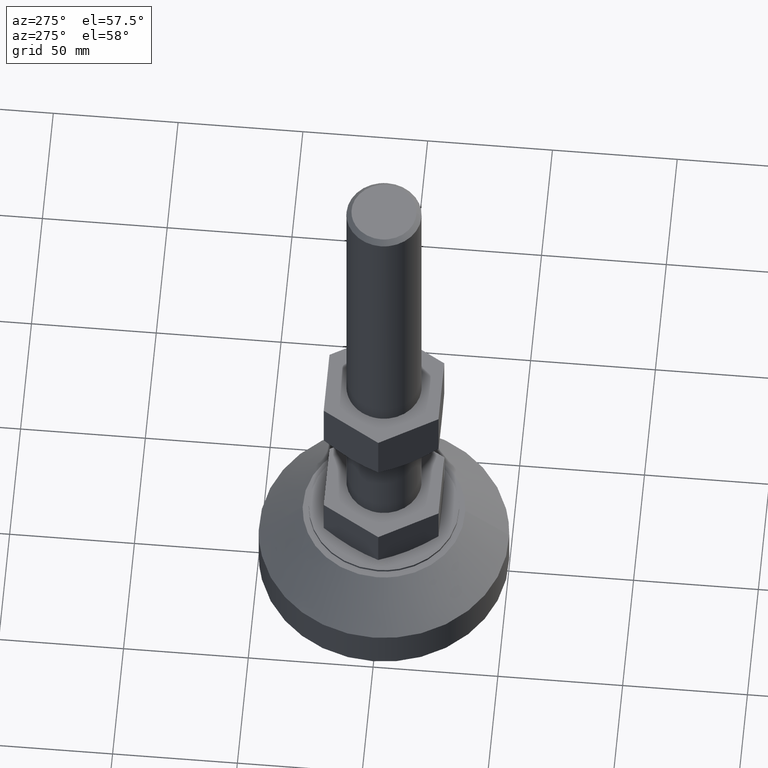
[diagram: clean part render]
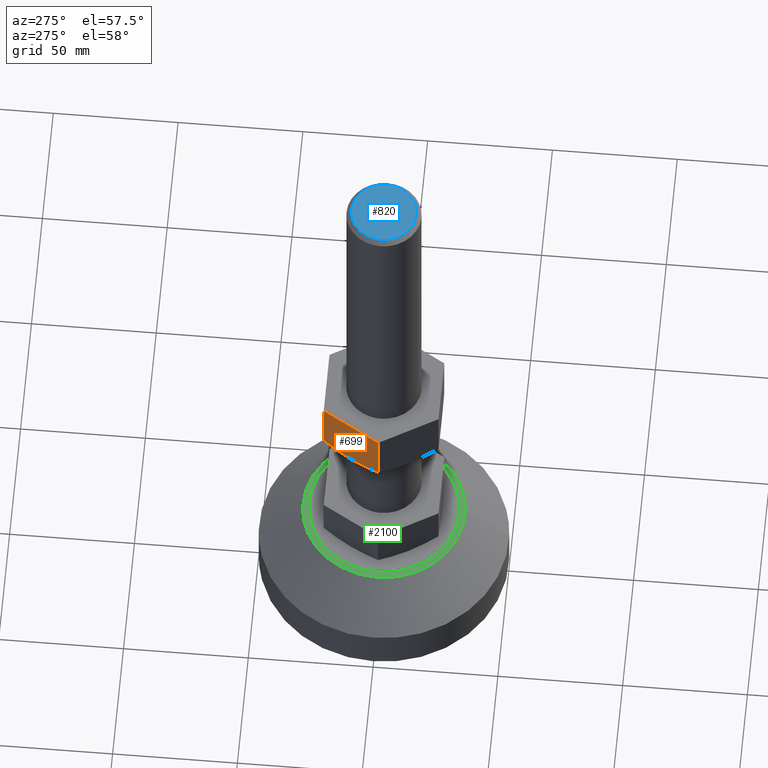
[diagram: same view with three faces highlighted in distinct colors, each labeled with its STEP entity id]
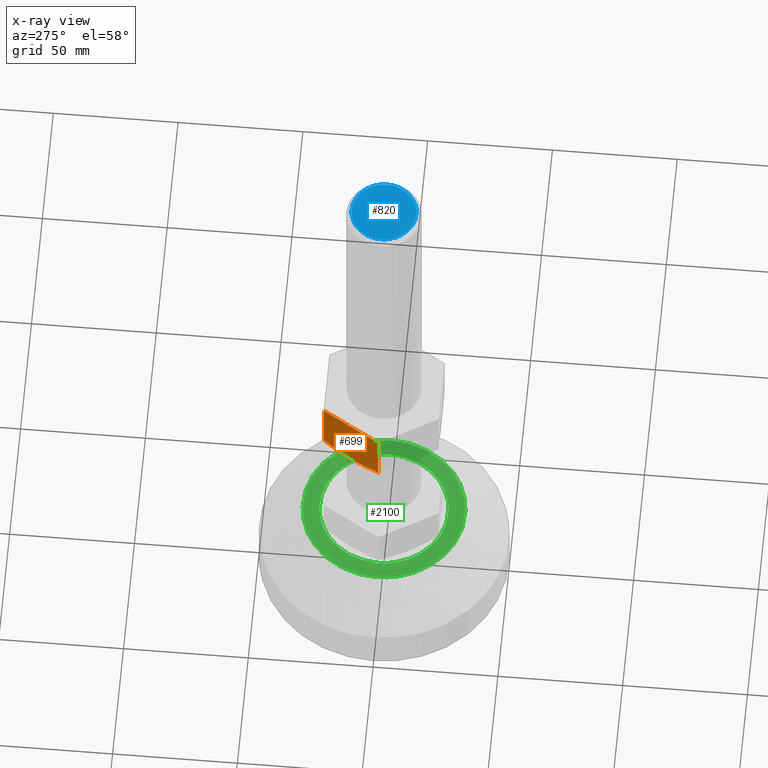
[diagram: x-ray of the same camera — body ghosted, the three highlighted faces saturated]
A machine part, auxiliary view with three faces highlighted in distinct colors.
The next image is the same camera in x-ray (body ghosted, the three faces saturated) — at least one of them is partly hidden behind the body in this view.
Their STEP definitions:

[orange] entity #699 — the highlighted face is a freeform B-spline surface patch.
#209=CARTESIAN_POINT('',(-19.918584287581599,11.500000000311660,101.500000000000000));
#210=VERTEX_POINT('',#209);
#508=CARTESIAN_POINT('',(-13.279056191431479,22.999999999879549,103.554277141584390));
#509=VERTEX_POINT('',#508);
#510=CARTESIAN_POINT('',(-13.279056191431479,22.999999999879549,103.554277141584390));
#511=CARTESIAN_POINT('',(-14.363165532334570,21.122267540473828,102.928366321783400));
#512=CARTESIAN_POINT('',(-15.455178589711050,19.230845442569169,102.412502653966000));
#513=CARTESIAN_POINT('',(-17.110278447046909,16.364128398063450,101.876523781289190));
#514=CARTESIAN_POINT('',(-17.664831937696739,15.403613576743270,101.737595308044310));
#515=CARTESIAN_POINT('',(-18.780397070937990,13.471398086817080,101.549658240475490));
#516=CARTESIAN_POINT('',(-19.341414293999300,12.499687752553699,101.500727345651400));
#517=CARTESIAN_POINT('',(-19.910123991145191,11.514653662339910,101.500002694858200));
#518=CARTESIAN_POINT('',(-19.914354042319850,11.507326998786770,101.500000000535000));
#519=CARTESIAN_POINT('',(-19.918584287121352,11.499999999862119,101.500000002169000));
#520=B_SPLINE_CURVE_WITH_KNOTS('',3,(#510,#511,#512,#513,#514,#515,#516,#517,#518,#519),.UNSPECIFIED.,.F.,.U.,(4,2,2,2,4),(0.0,0.250000000000001,0.375000000000001,0.500000000000001,0.500936671536728),.UNSPECIFIED.);
#521=EDGE_CURVE('',#509,#210,#520,.T.);
#556=CARTESIAN_POINT('',(-26.558112382653398,0.0,103.554277141584390));
#557=VERTEX_POINT('',#556);
#571=CARTESIAN_POINT('',(-19.918584287581599,11.500000000311660,101.500000000000000));
#572=CARTESIAN_POINT('',(-20.055486920867260,11.262877682524220,101.500000055054100));
#573=CARTESIAN_POINT('',(-20.192592349732479,11.025404113736119,101.502823723634900));
#574=CARTESIAN_POINT('',(-20.471454488147138,10.542400721694630,101.514333341154600));
#575=CARTESIAN_POINT('',(-20.612996516799662,10.297242736662120,101.523193135205600));
#576=CARTESIAN_POINT('',(-21.036572466519821,9.563587670882544,101.558638544490610));
#577=CARTESIAN_POINT('',(-21.317975327666371,9.076183617981465,101.594114884300690));
#578=CARTESIAN_POINT('',(-22.159367975885051,7.618848802151789,101.734544082940400));
#579=CARTESIAN_POINT('',(-22.716535244242291,6.653806785042677,101.873576611434400));
#580=CARTESIAN_POINT('',(-24.378117461084141,3.775861964519681,102.410445339017500));
#581=CARTESIAN_POINT('',(-25.472651472915199,1.880073445416084,102.927585993149900));
#582=CARTESIAN_POINT('',(-26.558112382702820,3.398886E-011,103.554277141612900));
#583=B_SPLINE_CURVE_WITH_KNOTS('',3,(#571,#572,#573,#574,#575,#576,#577,#578,#579,#580,#581,#582),.UNSPECIFIED.,.F.,.U.,(4,2,2,2,2,4),(0.500936671558572,0.531250000000001,0.562500000000000,0.625000000000001,0.750000000000000,1.0),.UNSPECIFIED.);
#584=EDGE_CURVE('',#210,#557,#583,.T.);
#610=CARTESIAN_POINT('',(-13.279056191360960,23.000000000000352,125.500000000000000));
#611=VERTEX_POINT('',#610);
#617=CARTESIAN_POINT('',(-26.558112382722300,3.410605E-013,125.500000000000000));
#618=VERTEX_POINT('',#617);
#619=CARTESIAN_POINT('',(-13.279056191360960,23.000000000000352,125.500000000000000));
#620=CARTESIAN_POINT('',(-26.558112382722300,3.410605E-013,125.500000000000000));
#621=QUASI_UNIFORM_CURVE('',1,(#619,#620),.UNSPECIFIED.,.F.,.U.);
#622=EDGE_CURVE('',#611,#618,#621,.T.);
#671=CARTESIAN_POINT('',(-26.558112382653398,0.0,103.554277141584390));
#672=CARTESIAN_POINT('',(-26.558112382722300,3.410605E-013,125.500000000000000));
#673=QUASI_UNIFORM_CURVE('',1,(#671,#672),.UNSPECIFIED.,.F.,.U.);
#674=EDGE_CURVE('',#557,#618,#673,.T.);
#683=CARTESIAN_POINT('',(-12.615767360339751,24.148849955421831,100.301200046516600));
#684=CARTESIAN_POINT('',(-27.221401569915422,-1.148850572329289,100.301200046516600));
#685=CARTESIAN_POINT('',(-12.615767360339751,24.148849955421831,126.698800597213510));
#686=CARTESIAN_POINT('',(-27.221401569915422,-1.148850572329289,126.698800597213510));
#687=B_SPLINE_SURFACE_WITH_KNOTS('',1,1,((#683,#685),(#684,#686)),.UNSPECIFIED.,.F.,.F.,.U.,(2,2),(2,2),(0.0,29.211268419151310),(0.0,26.397600550696868),.UNSPECIFIED.);
#688=CARTESIAN_POINT('',(-13.279056191431479,22.999999999879549,103.554277141584390));
#689=CARTESIAN_POINT('',(-13.279056191360960,23.000000000000352,125.500000000000000));
#690=QUASI_UNIFORM_CURVE('',1,(#688,#689),.UNSPECIFIED.,.F.,.U.);
#691=EDGE_CURVE('',#509,#611,#690,.T.);
#692=ORIENTED_EDGE('',*,*,#691,.F.);
#693=ORIENTED_EDGE('',*,*,#521,.T.);
#694=ORIENTED_EDGE('',*,*,#584,.T.);
#695=ORIENTED_EDGE('',*,*,#674,.T.);
#696=ORIENTED_EDGE('',*,*,#622,.F.);
#697=EDGE_LOOP('',(#692,#693,#694,#695,#696));
#698=FACE_OUTER_BOUND('',#697,.T.);
#699=ADVANCED_FACE('',(#698),#687,.T.);

[blue] entity #820 — the highlighted face is a freeform B-spline surface patch.
#749=CARTESIAN_POINT('',(-14.298699949606741,-14.298380035019219,255.500000000000000));
#750=CARTESIAN_POINT('',(14.298700646981510,-14.298380035019219,255.500000000000000));
#751=CARTESIAN_POINT('',(-14.298699949606741,14.298379570102989,255.500000000000000));
#752=CARTESIAN_POINT('',(14.298700646981510,14.298379570102989,255.500000000000000));
#753=B_SPLINE_SURFACE_WITH_KNOTS('',1,1,((#749,#751),(#750,#752)),.UNSPECIFIED.,.F.,.F.,.U.,(2,2),(2,2),(0.0,28.597400596588251),(0.0,28.596759605122209),.UNSPECIFIED.);
#754=CARTESIAN_POINT('',(0.793631014352747,-12.975752379513191,255.499999999947390));
#755=VERTEX_POINT('',#754);
#756=CARTESIAN_POINT('',(-12.999999999999790,0.0,255.500000000000000));
#757=VERTEX_POINT('',#756);
#758=CARTESIAN_POINT('',(0.793631014352747,-12.975752379513189,255.499999999947450));
#759=CARTESIAN_POINT('',(0.397185923083700,-13.000000000052381,255.499999999948130));
#760=CARTESIAN_POINT('',(3.367629E-012,-13.000000000051569,255.499999999949010));
#761=CARTESIAN_POINT('',(-12.999999999998257,-13.000000000024997,255.499999999975270));
#762=CARTESIAN_POINT('',(-12.999999999999790,0.0,255.500000000000000));
#770=(BOUNDED_CURVE()B_SPLINE_CURVE(2,(#758,#759,#760,#761,#762),.UNSPECIFIED.,.F.,.U.)B_SPLINE_CURVE_WITH_KNOTS((3,2,3),(0.739332962236701,0.750000000000000,1.0),.UNSPECIFIED.)CURVE()GEOMETRIC_REPRESENTATION_ITEM()RATIONAL_B_SPLINE_CURVE((0.976072041661912,0.987502787897210,1.0,0.707106781186547,1.0))REPRESENTATION_ITEM(''));
#771=EDGE_CURVE('',#755,#757,#770,.T.);
#772=ORIENTED_EDGE('',*,*,#771,.F.);
#773=CARTESIAN_POINT('',(13.000000000000210,0.0,255.500000000000000));
#774=VERTEX_POINT('',#773);
#775=CARTESIAN_POINT('',(13.000000000000210,0.0,255.500000000000000));
#776=CARTESIAN_POINT('',(13.000000000001839,-12.229178869426555,255.499999999973650));
#777=CARTESIAN_POINT('',(0.793631014352747,-12.975752379513189,255.499999999947450));
#785=(BOUNDED_CURVE()B_SPLINE_CURVE(2,(#775,#776,#777),.UNSPECIFIED.,.F.,.U.)B_SPLINE_CURVE_WITH_KNOTS((3,3),(0.500000000000000,0.739332962236701),.UNSPECIFIED.)CURVE()GEOMETRIC_REPRESENTATION_ITEM()RATIONAL_B_SPLINE_CURVE((1.0,0.719603993289337,0.976072041661912))REPRESENTATION_ITEM(''));
#786=EDGE_CURVE('',#774,#755,#785,.T.);
#787=ORIENTED_EDGE('',*,*,#786,.F.);
#788=CARTESIAN_POINT('',(-0.793631014352323,12.975752379513191,255.499999999947390));
#789=VERTEX_POINT('',#788);
#790=CARTESIAN_POINT('',(-0.793631014352323,12.975752379513189,255.499999999947450));
#791=CARTESIAN_POINT('',(-0.397185923083274,13.000000000052381,255.499999999948220));
#792=CARTESIAN_POINT('',(-2.939580E-012,13.000000000051569,255.499999999949010));
#793=CARTESIAN_POINT('',(12.999999999998687,13.000000000024999,255.499999999975270));
#794=CARTESIAN_POINT('',(13.000000000000210,0.0,255.500000000000000));
#802=(BOUNDED_CURVE()B_SPLINE_CURVE(2,(#790,#791,#792,#793,#794),.UNSPECIFIED.,.F.,.U.)B_SPLINE_CURVE_WITH_KNOTS((3,2,3),(0.239332962236701,0.250000000000000,0.500000000000000),.UNSPECIFIED.)CURVE()GEOMETRIC_REPRESENTATION_ITEM()RATIONAL_B_SPLINE_CURVE((0.976072041661912,0.987502787897210,1.0,0.707106781186547,1.0))REPRESENTATION_ITEM(''));
#803=EDGE_CURVE('',#789,#774,#802,.T.);
#804=ORIENTED_EDGE('',*,*,#803,.F.);
#805=CARTESIAN_POINT('',(-12.999999999999790,0.0,255.500000000000000));
#806=CARTESIAN_POINT('',(-13.000000000001414,12.229178869426558,255.499999999973650));
#807=CARTESIAN_POINT('',(-0.793631014352323,12.975752379513189,255.499999999947450));
#815=(BOUNDED_CURVE()B_SPLINE_CURVE(2,(#805,#806,#807),.UNSPECIFIED.,.F.,.U.)B_SPLINE_CURVE_WITH_KNOTS((3,3),(0.0,0.239332962236701),.UNSPECIFIED.)CURVE()GEOMETRIC_REPRESENTATION_ITEM()RATIONAL_B_SPLINE_CURVE((1.0,0.719603993289337,0.976072041661912))REPRESENTATION_ITEM(''));
#816=EDGE_CURVE('',#757,#789,#815,.T.);
#817=ORIENTED_EDGE('',*,*,#816,.F.);
#818=EDGE_LOOP('',(#772,#787,#804,#817));
#819=FACE_OUTER_BOUND('',#818,.T.);
#820=ADVANCED_FACE('',(#819),#753,.T.);

[green] entity #2100 — the highlighted face is a freeform B-spline surface patch.
#1921=CARTESIAN_POINT('',(1.571999893282857,-25.701971059346508,35.0));
#1922=VERTEX_POINT('',#1921);
#1928=CARTESIAN_POINT('',(25.749999999999559,0.0,35.0));
#1929=VERTEX_POINT('',#1928);
#1930=CARTESIAN_POINT('',(25.749999999999559,0.0,35.0));
#1931=CARTESIAN_POINT('',(25.749999999999559,-24.223181222575423,34.999999999999993));
#1932=CARTESIAN_POINT('',(1.571999893282855,-25.701971059346519,35.0));
#1940=(BOUNDED_CURVE()B_SPLINE_CURVE(2,(#1930,#1931,#1932),.UNSPECIFIED.,.F.,.U.)B_SPLINE_CURVE_WITH_KNOTS((3,3),(0.500000000000000,0.739332962240222),.UNSPECIFIED.)CURVE()GEOMETRIC_REPRESENTATION_ITEM()RATIONAL_B_SPLINE_CURVE((1.0,0.719603993285212,0.976072041669459))REPRESENTATION_ITEM(''));
#1941=EDGE_CURVE('',#1929,#1922,#1940,.T.);
#1943=CARTESIAN_POINT('',(-1.571999893282442,25.701971059346508,35.0));
#1944=VERTEX_POINT('',#1943);
#1945=CARTESIAN_POINT('',(-1.571999893282446,25.701971059346516,35.000000000000007));
#1946=CARTESIAN_POINT('',(-0.786733655068862,25.749999999999353,35.0));
#1947=CARTESIAN_POINT('',(2.131628E-013,25.749999999999350,35.0));
#1948=CARTESIAN_POINT('',(25.749999999999563,25.749999999999346,34.999999999999993));
#1949=CARTESIAN_POINT('',(25.749999999999559,0.0,35.0));
#1957=(BOUNDED_CURVE()B_SPLINE_CURVE(2,(#1945,#1946,#1947,#1948,#1949),.UNSPECIFIED.,.F.,.U.)B_SPLINE_CURVE_WITH_KNOTS((3,2,3),(0.239332962240222,0.250000000000000,0.500000000000000),.UNSPECIFIED.)CURVE()GEOMETRIC_REPRESENTATION_ITEM()RATIONAL_B_SPLINE_CURVE((0.976072041669459,0.987502787901336,1.0,0.707106781186548,1.0))REPRESENTATION_ITEM(''));
#1958=EDGE_CURVE('',#1944,#1929,#1957,.T.);
#1988=CARTESIAN_POINT('',(-25.749999999999140,0.0,35.0));
#1989=VERTEX_POINT('',#1988);
#1990=CARTESIAN_POINT('',(-25.749999999999140,0.0,35.0));
#1991=CARTESIAN_POINT('',(-25.749999999999133,24.223181222575406,35.0));
#1992=CARTESIAN_POINT('',(-1.571999893282446,25.701971059346516,35.000000000000007));
#2000=(BOUNDED_CURVE()B_SPLINE_CURVE(2,(#1990,#1991,#1992),.UNSPECIFIED.,.F.,.U.)B_SPLINE_CURVE_WITH_KNOTS((3,3),(0.0,0.239332962240222),.UNSPECIFIED.)CURVE()GEOMETRIC_REPRESENTATION_ITEM()RATIONAL_B_SPLINE_CURVE((1.0,0.719603993285212,0.976072041669459))REPRESENTATION_ITEM(''));
#2001=EDGE_CURVE('',#1989,#1944,#2000,.T.);
#2003=CARTESIAN_POINT('',(1.571999893282855,-25.701971059346519,35.0));
#2004=CARTESIAN_POINT('',(0.786733655069280,-25.749999999999350,35.0));
#2005=CARTESIAN_POINT('',(2.131628E-013,-25.749999999999350,35.0));
#2006=CARTESIAN_POINT('',(-25.749999999999137,-25.749999999999346,34.999999999999993));
#2007=CARTESIAN_POINT('',(-25.749999999999140,0.0,35.0));
#2015=(BOUNDED_CURVE()B_SPLINE_CURVE(2,(#2003,#2004,#2005,#2006,#2007),.UNSPECIFIED.,.F.,.U.)B_SPLINE_CURVE_WITH_KNOTS((3,2,3),(0.739332962240222,0.750000000000000,1.0),.UNSPECIFIED.)CURVE()GEOMETRIC_REPRESENTATION_ITEM()RATIONAL_B_SPLINE_CURVE((0.976072041669459,0.987502787901336,1.0,0.707106781186548,1.0))REPRESENTATION_ITEM(''));
#2016=EDGE_CURVE('',#1922,#1989,#2015,.T.);
#2023=CARTESIAN_POINT('',(-35.746749874016793,-35.745950087548202,35.0));
#2024=CARTESIAN_POINT('',(35.746751617453079,-35.745950087548202,35.0));
#2025=CARTESIAN_POINT('',(-35.746749874016793,35.745948925257643,35.0));
#2026=CARTESIAN_POINT('',(35.746751617453079,35.745948925257643,35.0));
#2027=B_SPLINE_SURFACE_WITH_KNOTS('',1,1,((#2023,#2025),(#2024,#2026)),.UNSPECIFIED.,.F.,.F.,.U.,(2,2),(2,2),(0.0,71.493501491469857),(0.0,71.491899012805845),.UNSPECIFIED.);
#2028=CARTESIAN_POINT('',(1.984077535049784,-32.439380948722061,34.999999999978201));
#2029=VERTEX_POINT('',#2028);
#2030=CARTESIAN_POINT('',(-32.499999999999432,0.0,35.0));
#2031=VERTEX_POINT('',#2030);
#2032=CARTESIAN_POINT('',(1.984077535049784,-32.439380948722061,34.999999999978208));
#2033=CARTESIAN_POINT('',(0.992964807288591,-32.500000000021188,34.999999999978513));
#2034=CARTESIAN_POINT('',(1.504640E-012,-32.500000000020847,34.999999999978847));
#2035=CARTESIAN_POINT('',(-32.499999999998806,-32.500000000009919,34.999999999989747));
#2036=CARTESIAN_POINT('',(-32.499999999999432,0.0,35.0));
#2044=(BOUNDED_CURVE()B_SPLINE_CURVE(2,(#2032,#2033,#2034,#2035,#2036),.UNSPECIFIED.,.F.,.U.)B_SPLINE_CURVE_WITH_KNOTS((3,2,3),(0.739332962241088,0.750000000000000,1.0),.UNSPECIFIED.)CURVE()GEOMETRIC_REPRESENTATION_ITEM()RATIONAL_B_SPLINE_CURVE((0.976072041671316,0.987502787902351,1.0,0.707106781186547,1.0))REPRESENTATION_ITEM(''));
#2045=EDGE_CURVE('',#2029,#2031,#2044,.T.);
#2046=ORIENTED_EDGE('',*,*,#2045,.F.);
#2047=CARTESIAN_POINT('',(32.499999999999872,0.0,35.0));
#2048=VERTEX_POINT('',#2047);
#2049=CARTESIAN_POINT('',(32.499999999999872,0.0,35.0));
#2050=CARTESIAN_POINT('',(32.500000000000526,-30.572947174289496,34.999999999989093));
#2051=CARTESIAN_POINT('',(1.984077535049784,-32.439380948722061,34.999999999978208));
#2059=(BOUNDED_CURVE()B_SPLINE_CURVE(2,(#2049,#2050,#2051),.UNSPECIFIED.,.F.,.U.)B_SPLINE_CURVE_WITH_KNOTS((3,3),(0.500000000000000,0.739332962241088),.UNSPECIFIED.)CURVE()GEOMETRIC_REPRESENTATION_ITEM()RATIONAL_B_SPLINE_CURVE((1.0,0.719603993284196,0.976072041671316))REPRESENTATION_ITEM(''));
#2060=EDGE_CURVE('',#2048,#2029,#2059,.T.);
#2061=ORIENTED_EDGE('',*,*,#2060,.F.);
#2062=CARTESIAN_POINT('',(-1.984077535049357,32.439380948722061,34.999999999978208));
#2063=VERTEX_POINT('',#2062);
#2064=CARTESIAN_POINT('',(-1.984077535049357,32.439380948722061,34.999999999978208));
#2065=CARTESIAN_POINT('',(-0.992964807288166,32.500000000021188,34.999999999978520));
#2066=CARTESIAN_POINT('',(-1.082408E-012,32.500000000020847,34.999999999978847));
#2067=CARTESIAN_POINT('',(32.499999999999233,32.500000000009919,34.999999999989747));
#2068=CARTESIAN_POINT('',(32.499999999999872,0.0,35.0));
#2076=(BOUNDED_CURVE()B_SPLINE_CURVE(2,(#2064,#2065,#2066,#2067,#2068),.UNSPECIFIED.,.F.,.U.)B_SPLINE_CURVE_WITH_KNOTS((3,2,3),(0.239332962241088,0.250000000000000,0.500000000000000),.UNSPECIFIED.)CURVE()GEOMETRIC_REPRESENTATION_ITEM()RATIONAL_B_SPLINE_CURVE((0.976072041671316,0.987502787902351,1.0,0.707106781186547,1.0))REPRESENTATION_ITEM(''));
#2077=EDGE_CURVE('',#2063,#2048,#2076,.T.);
#2078=ORIENTED_EDGE('',*,*,#2077,.F.);
#2079=CARTESIAN_POINT('',(-32.499999999999432,0.0,35.0));
#2080=CARTESIAN_POINT('',(-32.500000000000107,30.572947174289499,34.999999999989100));
#2081=CARTESIAN_POINT('',(-1.984077535049357,32.439380948722061,34.999999999978208));
#2089=(BOUNDED_CURVE()B_SPLINE_CURVE(2,(#2079,#2080,#2081),.UNSPECIFIED.,.F.,.U.)B_SPLINE_CURVE_WITH_KNOTS((3,3),(0.0,0.239332962241088),.UNSPECIFIED.)CURVE()GEOMETRIC_REPRESENTATION_ITEM()RATIONAL_B_SPLINE_CURVE((1.0,0.719603993284196,0.976072041671316))REPRESENTATION_ITEM(''));
#2090=EDGE_CURVE('',#2031,#2063,#2089,.T.);
#2091=ORIENTED_EDGE('',*,*,#2090,.F.);
#2092=EDGE_LOOP('',(#2046,#2061,#2078,#2091));
#2093=FACE_OUTER_BOUND('',#2092,.T.);
#2094=ORIENTED_EDGE('',*,*,#1941,.T.);
#2095=ORIENTED_EDGE('',*,*,#2016,.T.);
#2096=ORIENTED_EDGE('',*,*,#2001,.T.);
#2097=ORIENTED_EDGE('',*,*,#1958,.T.);
#2098=EDGE_LOOP('',(#2094,#2095,#2096,#2097));
#2099=FACE_BOUND('',#2098,.T.);
#2100=ADVANCED_FACE('',(#2093,#2099),#2027,.T.);